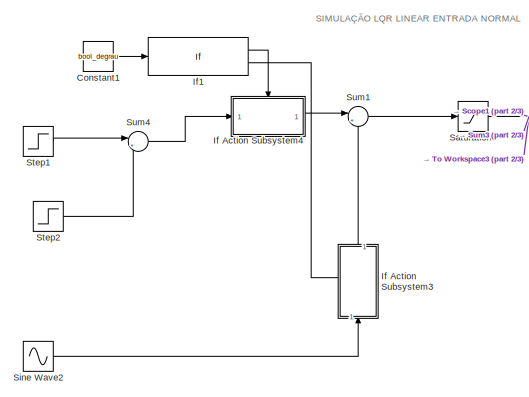
[diagram: root canvas - part 1/3, top left region]
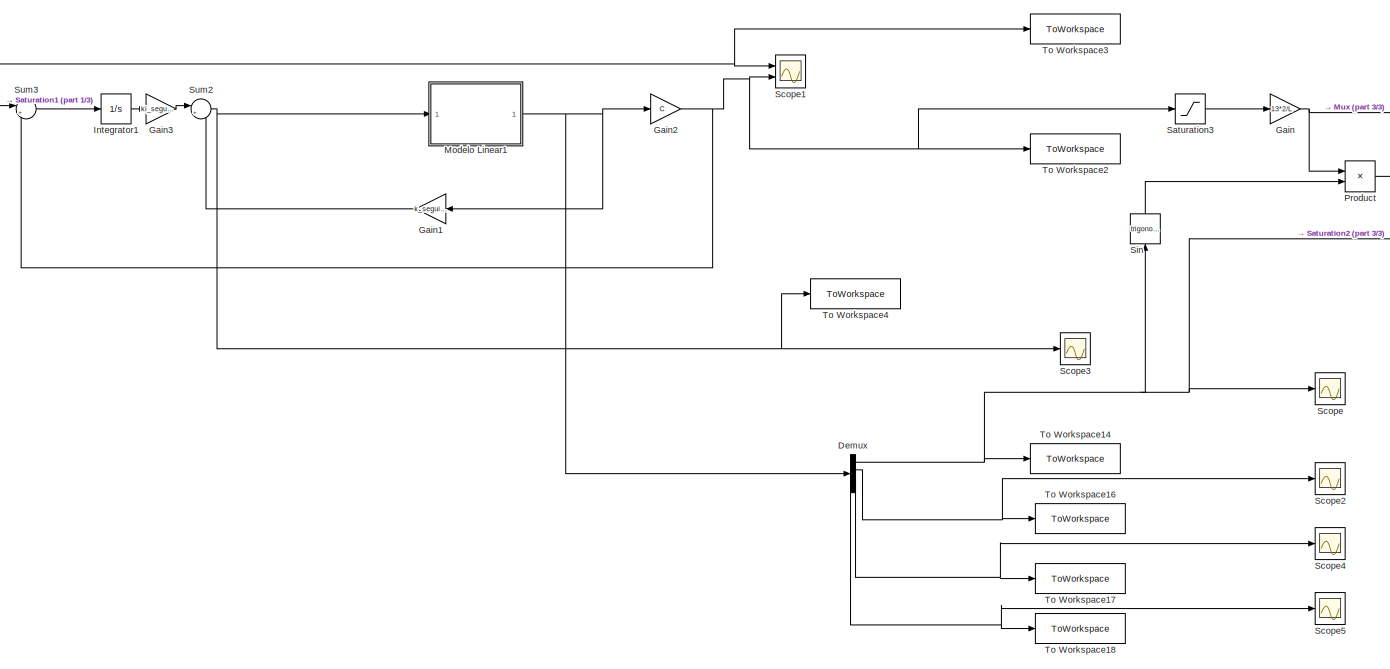
[diagram: root canvas - part 2/3, center side, full height]
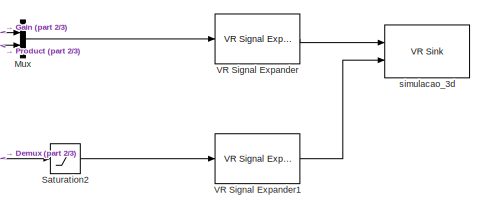
[diagram: root canvas - part 3/3, top right region]
MODEL slx_86605ce383ed
KIND model
CONFIG AbsTol = auto
CONFIG EnableMultiTasking = off
CONFIG FixedStep = auto
CONFIG MaxStep = auto
CONFIG MinStep = auto
CONFIG RelTol = 1e-3
CONFIG SampleTimeConstraint = Unconstrained
CONFIG SolverName = VariableStepAuto
CONFIG StartTime = 0
CONFIG StopTime = 100
BLOCK [Constant] Constant1
  Value = bool_degrau
BLOCK [Demux] Demux
  Ports = [1, 4]
BLOCK [Gain] Gain
  Gain = 13*2/L
BLOCK [Gain] Gain1
  Gain = k_seguimento
  Multiplication = Matrix(K*u)
  NameLocation = top
BLOCK [Gain] Gain2
  Gain = C
  Multiplication = Matrix(K*u)
BLOCK [Gain] Gain3
  Gain = ki_seguimento
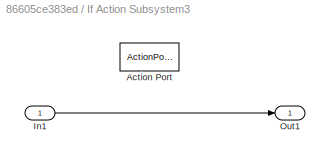
BLOCK [SubSystem] If Action Subsystem3
  NameLocation = right
  Ports = [1, 1, 0, 0, 0, 0, 0, 1]
  RequestExecContextInheritance = off
  TreatAsAtomicUnit = on
BLOCK [ActionPort] If Action Subsystem3/Action Port
  ActionPortLabel = else
BLOCK [Inport] If Action Subsystem3/In1
BLOCK [Outport] If Action Subsystem3/Out1
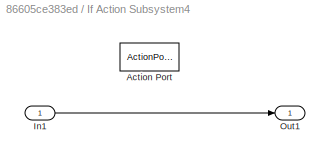
BLOCK [SubSystem] If Action Subsystem4
  Ports = [1, 1, 0, 0, 0, 0, 0, 1]
  RequestExecContextInheritance = off
  TreatAsAtomicUnit = on
BLOCK [ActionPort] If Action Subsystem4/Action Port
  ActionPortLabel = if(u1 == 1)
BLOCK [Inport] If Action Subsystem4/In1
BLOCK [Outport] If Action Subsystem4/Out1
BLOCK [If] If1
  IfExpression = u1 == 1
  Ports = [1, 2]
BLOCK [Integrator] Integrator1
  Ports = [1, 1]
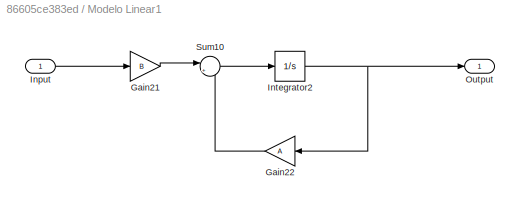
BLOCK [SubSystem] Modelo Linear1
  Ports = [1, 1]
  RequestExecContextInheritance = off
BLOCK [Gain] Modelo Linear1/Gain21
  Gain = B
  Multiplication = Matrix(K*u)
BLOCK [Gain] Modelo Linear1/Gain22
  Gain = A
  Multiplication = Matrix(K*u)
  NameLocation = top
BLOCK [Inport] Modelo Linear1/Input
BLOCK [Integrator] Modelo Linear1/Integrator2
  Ports = [1, 1]
BLOCK [Outport] Modelo Linear1/Output
BLOCK [Sum] Modelo Linear1/Sum10
  Inputs = |++
  Ports = [2, 1]
BLOCK [Mux] Mux
  DisplayOption = bar
  Inputs = 2
  Ports = [2, 1]
BLOCK [Product] Product
  Ports = [2, 1]
BLOCK [Saturate] Saturation1
  LowerLimit = -L/2
  UpperLimit = L/2
BLOCK [Saturate] Saturation2
  LowerLimit = -0.8
  UpperLimit = 0.8
BLOCK [Saturate] Saturation3
  LowerLimit = 0
  UpperLimit = L/2
BLOCK [Scope] Scope
  Floating = off
  NumInputPorts = 1
  Ports = [1]
  ScopeSpecificationString = Simulink.scopes.TimeScopeBlockCfg('CurrentConfiguration', extmgr.ConfigurationSet(extmgr.Configuration('Core','General UI',true),extmgr.Configuration('Core','Source UI',true),extmgr.Configuration('Sources','WiredSimulink',true,'DataLoggingVariableName','ScopeData1'),extmgr.Configuration('Visuals','Time Domain',true,'SerializedDisplays',{struct('MinYLimReal','-0.00632','MaxYLimReal','0.00395','YLab...<+1395ch>
BLOCK [Scope] Scope1
  Floating = off
  NumInputPorts = 2
  Ports = [2]
  ScopeSpecificationString = Simulink.scopes.TimeScopeBlockCfg('CurrentConfiguration', extmgr.ConfigurationSet(extmgr.Configuration('Core','General UI',true,'FigureColor',[1 1 1]),extmgr.Configuration('Core','Source UI',true),extmgr.Configuration('Sources','WiredSimulink',true,'DataLoggingVariableName','ScopeData1'),extmgr.Configuration('Visuals','Time Domain',true,'SerializedDisplays',{struct('MinYLimReal','-0.26562','MaxYLi...<+1813ch>
BLOCK [Scope] Scope2
  Floating = off
  NumInputPorts = 1
  Ports = [1]
  ScopeSpecificationString = Simulink.scopes.TimeScopeBlockCfg('CurrentConfiguration', extmgr.ConfigurationSet(extmgr.Configuration('Core','General UI',true),extmgr.Configuration('Core','Source UI',true),extmgr.Configuration('Sources','WiredSimulink',true,'DataLoggingVariableName','ScopeData2'),extmgr.Configuration('Visuals','Time Domain',true,'SerializedDisplays',{struct('MinYLimReal','-0.00311','MaxYLimReal','0.00307','YLab...<+1366ch>
BLOCK [Scope] Scope3
  Floating = off
  NumInputPorts = 1
  Ports = [1]
  ScopeSpecificationString = Simulink.scopes.TimeScopeBlockCfg('CurrentConfiguration', extmgr.ConfigurationSet(extmgr.Configuration('Core','General UI',true),extmgr.Configuration('Core','Source UI',true),extmgr.Configuration('Sources','WiredSimulink',true),extmgr.Configuration('Visuals','Time Domain',true,'SerializedDisplays',{struct('MinYLimReal','-2.72608','MaxYLimReal','2.77862','YLabelReal','','MinYLimMag','0.00000','MaxY...<+1353ch>
BLOCK [Scope] Scope4
  Floating = off
  NumInputPorts = 1
  Ports = [1]
  ScopeSpecificationString = Simulink.scopes.TimeScopeBlockCfg('CurrentConfiguration', extmgr.ConfigurationSet(extmgr.Configuration('Core','General UI',true),extmgr.Configuration('Core','Source UI',true),extmgr.Configuration('Sources','WiredSimulink',true,'DataLoggingVariableName','ScopeData3'),extmgr.Configuration('Visuals','Time Domain',true,'SerializedDisplays',{struct('MinYLimReal','-0.25616','MaxYLimReal','0.25943','YLab...<+1366ch>
BLOCK [Scope] Scope5
  Floating = off
  NumInputPorts = 1
  Ports = [1]
  ScopeSpecificationString = Simulink.scopes.TimeScopeBlockCfg('CurrentConfiguration', extmgr.ConfigurationSet(extmgr.Configuration('Core','General UI',true),extmgr.Configuration('Core','Source UI',true),extmgr.Configuration('Sources','WiredSimulink',true,'DataLoggingVariableName','ScopeData4'),extmgr.Configuration('Visuals','Time Domain',true,'SerializedDisplays',{struct('MinYLimReal','-0.05344','MaxYLimReal','0.0532','YLabe...<+1364ch>
BLOCK [Trigonometry] Sin
  NameLocation = right
  Ports = [1, 1]
BLOCK [Sin] Sine Wave2
  Amplitude = amplitude_entrada
  Frequency = 0.1
  Ports = [0, 1]
  SampleTime = 0
BLOCK [Step] Step1
  After = amplitude_entrada
  SampleTime = 0
BLOCK [Step] Step2
  After = -2*amplitude_entrada
  SampleTime = 0
  Time = 100
BLOCK [Sum] Sum1
  Inputs = |++
  Ports = [2, 1]
BLOCK [Sum] Sum2
  Inputs = |+-
  Ports = [2, 1]
BLOCK [Sum] Sum3
  Inputs = |+-
  Ports = [2, 1]
BLOCK [Sum] Sum4
  Inputs = |++
  Ports = [2, 1]
BLOCK [ToWorkspace] To Workspace14
  FixptAsFi = on
  MaxDataPoints = inf
  Ports = [1]
  SampleTime = -1
  SaveFormat = Timeseries
  VariableName = output_estados_1
BLOCK [ToWorkspace] To Workspace16
  FixptAsFi = on
  MaxDataPoints = inf
  Ports = [1]
  SampleTime = -1
  SaveFormat = Timeseries
  VariableName = output_estados_2
BLOCK [ToWorkspace] To Workspace17
  FixptAsFi = on
  MaxDataPoints = inf
  Ports = [1]
  SampleTime = -1
  SaveFormat = Timeseries
  VariableName = output_estados_3
BLOCK [ToWorkspace] To Workspace18
  FixptAsFi = on
  MaxDataPoints = inf
  Ports = [1]
  SampleTime = -1
  SaveFormat = Timeseries
  VariableName = output_estados_4
BLOCK [ToWorkspace] To Workspace2
  FixptAsFi = on
  MaxDataPoints = inf
  Ports = [1]
  SampleTime = -1
  SaveFormat = Timeseries
  VariableName = y_output
BLOCK [ToWorkspace] To Workspace3
  FixptAsFi = on
  MaxDataPoints = inf
  Ports = [1]
  SampleTime = -1
  SaveFormat = Timeseries
  VariableName = u_output
BLOCK [ToWorkspace] To Workspace4
  FixptAsFi = on
  MaxDataPoints = inf
  Ports = [1]
  SampleTime = -1
  SaveFormat = Timeseries
  VariableName = acao_controle
BLOCK [Reference] VR Signal Expander  REF=vrlib/VR Signal Expander
  Ports = [1, 1]
  SourceBlock = vrlib/VR Signal Expander
  SourceProductBaseCode = SL
  SourceType = VR Signal Expander
BLOCK [Reference] VR Signal Expander1  REF=vrlib/VR Signal Expander
  Ports = [1, 1]
  SourceBlock = vrlib/VR Signal Expander
  SourceProductBaseCode = SL
  SourceType = VR Signal Expander
BLOCK [Reference] simulacao_3d  REF=vrlib/VR Sink
  InstantiateOnLoad = on
  Ports = [2]
  SourceBlock = vrlib/VR Sink
  SourceProductBaseCode = SL
  SourceType = Virtual Reality Sink
ANNOTATION (root): SIMULAÇÃO LQR LINEAR ENTRADA NORMAL
LINE Constant1:1 -> If1:1
NET Demux:1 -> Saturation2:1, Scope:1, Sin:1, To Workspace14:1
NET Demux:2 -> Scope2:1, To Workspace16:1
NET Demux:3 -> Scope4:1, To Workspace17:1
NET Demux:4 -> Scope5:1, To Workspace18:1
LINE Gain1:1 -> Sum2:2
NET Gain2:1 -> Saturation3:1, Scope1:2, Sum3:2, To Workspace2:1
LINE Gain3:1 -> Sum2:1
NET Gain:1 -> Mux:1, Product:1
LINE If Action Subsystem3/In1:1 -> If Action Subsystem3/Out1:1
LINE If Action Subsystem3:1 -> Sum1:2
LINE If Action Subsystem4/In1:1 -> If Action Subsystem4/Out1:1
LINE If Action Subsystem4:1 -> Sum1:1
LINE If1:1 -> If Action Subsystem4:ifaction
LINE If1:2 -> If Action Subsystem3:ifaction
LINE Integrator1:1 -> Gain3:1
LINE Modelo Linear1/Gain21:1 -> Modelo Linear1/Sum10:1
LINE Modelo Linear1/Gain22:1 -> Modelo Linear1/Sum10:2
LINE Modelo Linear1/Input:1 -> Modelo Linear1/Gain21:1
NET Modelo Linear1/Integrator2:1 -> Modelo Linear1/Gain22:1, Modelo Linear1/Output:1
LINE Modelo Linear1/Sum10:1 -> Modelo Linear1/Integrator2:1
NET Modelo Linear1:1 -> Demux:1, Gain1:1, Gain2:1
LINE Mux:1 -> VR Signal Expander:1
LINE Product:1 -> Mux:2
NET Saturation1:1 -> Scope1:1, Sum3:1, To Workspace3:1
LINE Saturation2:1 -> VR Signal Expander1:1
LINE Saturation3:1 -> Gain:1
LINE Sin:1 -> Product:2
LINE Sine Wave2:1 -> If Action Subsystem3:1
LINE Step1:1 -> Sum4:1
LINE Step2:1 -> Sum4:2
LINE Sum1:1 -> Saturation1:1
NET Sum2:1 -> Modelo Linear1:1, Scope3:1, To Workspace4:1
LINE Sum3:1 -> Integrator1:1
LINE Sum4:1 -> If Action Subsystem4:1
LINE VR Signal Expander1:1 -> simulacao_3d:2
LINE VR Signal Expander:1 -> simulacao_3d:1
note: NET lines group one-source signal fan-out (src -> all destinations, sorted); 1:1 wires keep LINE
